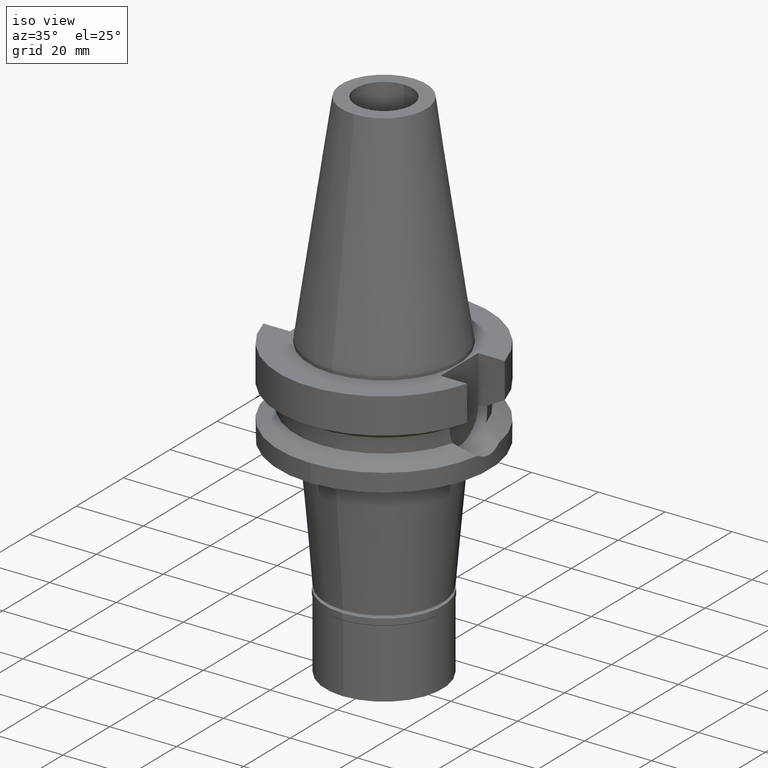
[diagram: clean part render]
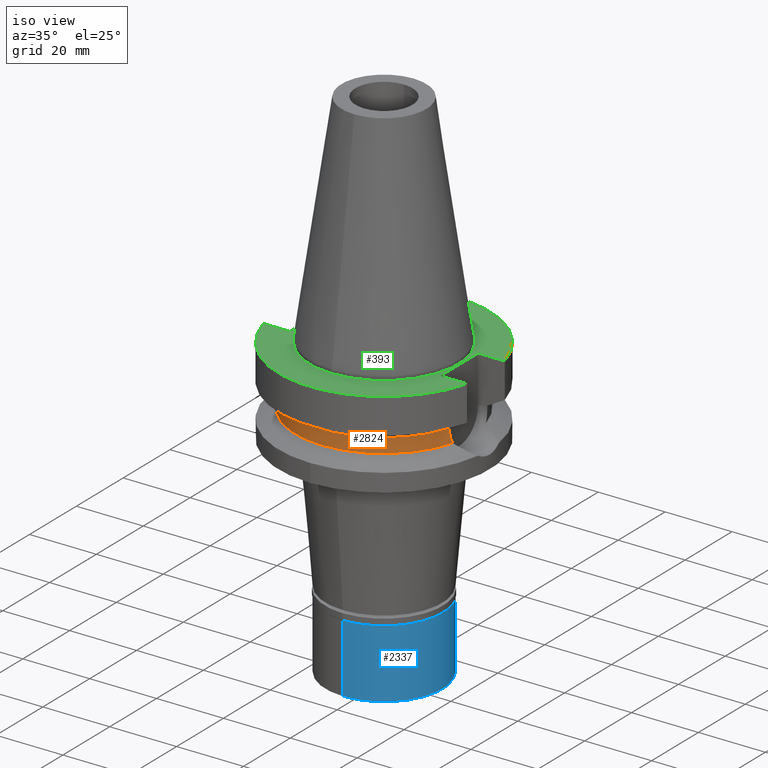
[diagram: same view with three faces highlighted in distinct colors, each labeled with its STEP entity id]
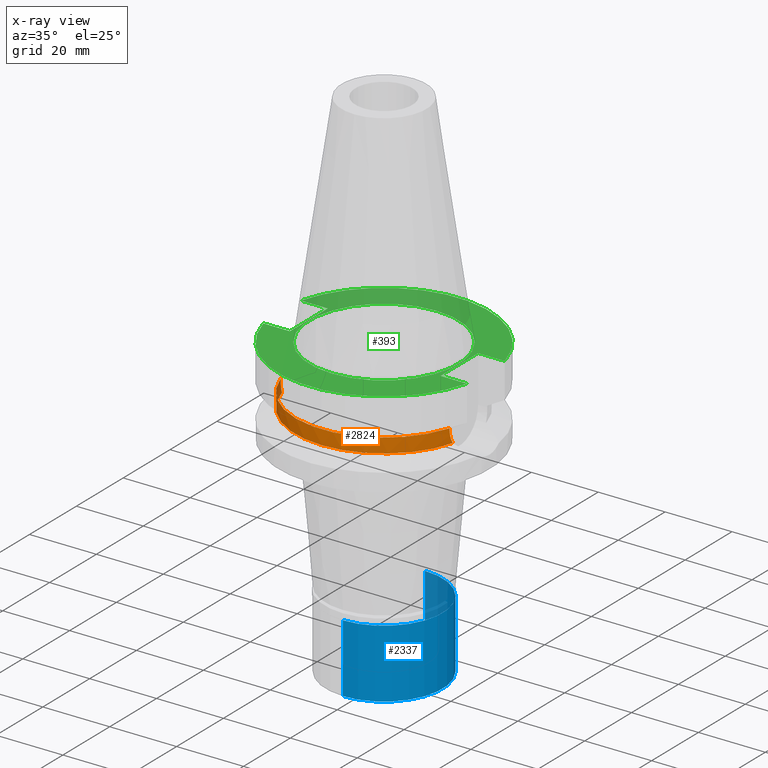
[diagram: x-ray of the same camera — body ghosted, the three highlighted faces saturated]
A machine part, iso view with three faces highlighted in distinct colors.
The next image is the same camera in x-ray (body ghosted, the three faces saturated) — at least one of them is partly hidden behind the body in this view.
Their STEP definitions:

[orange] entity #2824 — the highlighted cylindrical surface (partial cylindrical patch) has radius 26.5 mm, axis along (0, 0, -1).
#82 = VERTEX_POINT ( 'NONE', #1217 ) ;
#85 = EDGE_CURVE ( 'NONE', #82, #1174, #2750, .T. ) ;
#87 = CARTESIAN_POINT ( 'NONE',  ( -25.53175183775000079, -7.097862220092999941, -18.74774300138999905 ) ) ;
#141 = VECTOR ( 'NONE', #1894, 1000.000000000000000 ) ;
#144 = DIRECTION ( 'NONE',  ( 0.0000000000000000000, 0.0000000000000000000, -1.000000000000000000 ) ) ;
#155 = DIRECTION ( 'NONE',  ( 0.0000000000000000000, -1.000000000000000000, 0.0000000000000000000 ) ) ;
#208 = CARTESIAN_POINT ( 'NONE',  ( 25.28048358772242210, -7.947040743794914874, -16.24400980664077920 ) ) ;
#210 = ORIENTED_EDGE ( 'NONE', *, *, #3015, .F. ) ;
#222 = CARTESIAN_POINT ( 'NONE',  ( 25.32118155423751560, -7.816096717212906775, -16.87652453452377443 ) ) ;
#347 = ORIENTED_EDGE ( 'NONE', *, *, #85, .F. ) ;
#418 = CARTESIAN_POINT ( 'NONE',  ( 25.31950905643225269, -7.821515286679913359, -16.85442525727320273 ) ) ;
#474 = CARTESIAN_POINT ( 'NONE',  ( 25.24772216476999986, -8.050001583265000704, -14.45224490106999937 ) ) ;
#481 = CARTESIAN_POINT ( 'NONE',  ( 25.30212919435223995, -7.877667573970332349, -16.61042047323947202 ) ) ;
#600 = ORIENTED_EDGE ( 'NONE', *, *, #1741, .F. ) ;
#604 = CARTESIAN_POINT ( 'NONE',  ( 0.0000000000000000000, 1.065333950388000029E-14, -14.45225699861000024 ) ) ;
#662 = VERTEX_POINT ( 'NONE', #1768 ) ;
#681 = B_SPLINE_CURVE_WITH_KNOTS ( 'NONE', 3,
 ( #87, #1330, #1538, #2321, #2818, #1087, #813, #2560, #2099, #1059, #3063, #3074, #3025, #1315 ),
 .UNSPECIFIED., .F., .F.,
 ( 4, 2, 2, 1, 1, 2, 2, 4 ),
 ( 0.0000000000000000000, 0.2500000000000041078, 0.3750000000000073830, 0.4375000000000078826, 0.4687500000000093259, 0.4843750000000099365, 0.5000000000000105471, 1.000000000000000000 ),
 .UNSPECIFIED. ) ;
#813 = CARTESIAN_POINT ( 'NONE',  ( -25.34388450889784750, -7.742333382928174856, -17.15666984720027344 ) ) ;
#858 = VERTEX_POINT ( 'NONE', #871 ) ;
#863 = EDGE_CURVE ( 'NONE', #1174, #662, #1140, .T. ) ;
#871 = CARTESIAN_POINT ( 'NONE',  ( -25.24772413216999922, -8.049995412768000236, -14.45229205104999970 ) ) ;
#932 = LINE ( 'NONE', #1434, #141 ) ;
#949 = CARTESIAN_POINT ( 'NONE',  ( 25.31648647172267630, -7.831300037042746354, -16.81378020971410336 ) ) ;
#964 = CARTESIAN_POINT ( 'NONE',  ( 25.43786330456363487, -7.435589081430040714, -18.11654211998952135 ) ) ;
#981 = ORIENTED_EDGE ( 'NONE', *, *, #863, .F. ) ;
#1059 = CARTESIAN_POINT ( 'NONE',  ( -25.32550670071061916, -7.802071535306239092, -16.93256103013014169 ) ) ;
#1060 = ORIENTED_EDGE ( 'NONE', *, *, #3092, .T. ) ;
#1087 = CARTESIAN_POINT ( 'NONE',  ( -25.35412323723021544, -7.708830947932238331, -17.27007949472962878 ) ) ;
#1101 = VERTEX_POINT ( 'NONE', #2699 ) ;
#1140 = B_SPLINE_CURVE_WITH_KNOTS ( 'NONE', 3,
 ( #2826, #2884, #2438, #3113, #208, #1655, #481, #1939, #949, #418, #222, #1221, #964, #2869 ),
 .UNSPECIFIED., .F., .F.,
 ( 4, 2, 2, 1, 1, 2, 2, 4 ),
 ( 0.0000000000000000000, 0.2500000000000145439, 0.3750000000000218159, 0.4375000000000255351, 0.4687500000000285882, 0.4843750000000303091, 0.5000000000000319744, 1.000000000000000000 ),
 .UNSPECIFIED. ) ;
#1142 = CARTESIAN_POINT ( 'NONE',  ( 0.0000000000000000000, 2.116618295306000150E-14, 72.83499999999999375 ) ) ;
#1174 = VERTEX_POINT ( 'NONE', #1281 ) ;
#1217 = CARTESIAN_POINT ( 'NONE',  ( 25.24772266958000344, -8.050000000000000711, -14.45225699861000024 ) ) ;
#1221 = CARTESIAN_POINT ( 'NONE',  ( 25.36814761471070767, -7.663830712965410186, -17.48803584493431984 ) ) ;
#1235 = DIRECTION ( 'NONE',  ( 0.0000000000000000000, 0.0000000000000000000, 1.000000000000000000 ) ) ;
#1281 = CARTESIAN_POINT ( 'NONE',  ( 25.24772266958000344, -8.050000000000000711, -14.94999999999999929 ) ) ;
#1315 = CARTESIAN_POINT ( 'NONE',  ( -25.24772266958000344, -8.050000000000000711, -14.94999999999999929 ) ) ;
#1330 = CARTESIAN_POINT ( 'NONE',  ( -25.48482038766596958, -7.266679548433801372, -18.43222872448819771 ) ) ;
#1399 = VECTOR ( 'NONE', #2922, 1000.000000000000000 ) ;
#1434 = CARTESIAN_POINT ( 'NONE',  ( -25.24772266958000344, -8.050000000000000711, -14.94999999999999929 ) ) ;
#1513 = CIRCLE ( 'NONE', #1919, 26.50000000000000711 ) ;
#1538 = CARTESIAN_POINT ( 'NONE',  ( -25.44392837589916567, -7.408239565059886900, -18.11709494172728796 ) ) ;
#1637 = VERTEX_POINT ( 'NONE', #2493 ) ;
#1655 = CARTESIAN_POINT ( 'NONE',  ( 25.29452398121201284, -7.902090651792915033, -16.48828405102948125 ) ) ;
#1741 = EDGE_CURVE ( 'NONE', #1637, #1101, #681, .T. ) ;
#1748 = EDGE_LOOP ( 'NONE', ( #600, #1060, #981, #347, #2772, #210 ) ) ;
#1768 = CARTESIAN_POINT ( 'NONE',  ( 25.53175183775000079, -7.097862220092999941, -18.74774300138999905 ) ) ;
#1894 = DIRECTION ( 'NONE',  ( -2.938661411159025580E-06, 9.216714892034072337E-06, 0.9999999999532082073 ) ) ;
#1919 = AXIS2_PLACEMENT_3D ( 'NONE', #604, #144, #2052 ) ;
#1939 = CARTESIAN_POINT ( 'NONE',  ( 25.31202572170774800, -7.845729406580115750, -16.75279821057748464 ) ) ;
#2052 = DIRECTION ( 'NONE',  ( 0.9527442516822307583, -0.3037735849057093818, 0.0000000000000000000 ) ) ;
#2099 = CARTESIAN_POINT ( 'NONE',  ( -25.32844777903620681, -7.792527725354012169, -16.96974754110893002 ) ) ;
#2321 = CARTESIAN_POINT ( 'NONE',  ( -25.39164951572487183, -7.584807667336966652, -17.65197957159458753 ) ) ;
#2348 = CYLINDRICAL_SURFACE ( 'NONE', #2740, 26.50000000000000000 ) ;
#2438 = CARTESIAN_POINT ( 'NONE',  ( 25.25396284446427231, -8.030907492774099765, -15.59360398733923248 ) ) ;
#2493 = CARTESIAN_POINT ( 'NONE',  ( -25.53175183775000079, -7.097862220092999941, -18.74774300138999905 ) ) ;
#2536 = AXIS2_PLACEMENT_3D ( 'NONE', #2962, #1235, #2760 ) ;
#2560 = CARTESIAN_POINT ( 'NONE',  ( -25.33293017119236268, -7.777974374871634566, -17.02562462713753177 ) ) ;
#2572 = DIRECTION ( 'NONE',  ( 0.0000000000000000000, 0.0000000000000000000, -1.000000000000000000 ) ) ;
#2699 = CARTESIAN_POINT ( 'NONE',  ( -25.24772266958000344, -8.050000000000000711, -14.94999999999999929 ) ) ;
#2740 = AXIS2_PLACEMENT_3D ( 'NONE', #1142, #2572, #155 ) ;
#2750 = LINE ( 'NONE', #474, #1399 ) ;
#2760 = DIRECTION ( 'NONE',  ( -0.9634623335000935818, -0.2678438573619981722, 0.0000000000000000000 ) ) ;
#2772 = ORIENTED_EDGE ( 'NONE', *, *, #2778, .T. ) ;
#2778 = EDGE_CURVE ( 'NONE', #82, #858, #1513, .T. ) ;
#2814 = FACE_OUTER_BOUND ( 'NONE', #1748, .T. ) ;
#2818 = CARTESIAN_POINT ( 'NONE',  ( -25.37573308857942322, -7.637710303739487117, -17.49818662950802306 ) ) ;
#2824 = ADVANCED_FACE ( 'NONE', ( #2814 ), #2348, .T. ) ;
#2826 = CARTESIAN_POINT ( 'NONE',  ( 25.24772266958000344, -8.050000000000000711, -14.94999999999999929 ) ) ;
#2869 = CARTESIAN_POINT ( 'NONE',  ( 25.53175183775000079, -7.097862220092999941, -18.74774300138999905 ) ) ;
#2884 = CARTESIAN_POINT ( 'NONE',  ( 25.24772266958000344, -8.050000000000000711, -15.26991324108737302 ) ) ;
#2922 = DIRECTION ( 'NONE',  ( 1.014171168404026017E-06, 3.180810831124084936E-06, -0.9999999999944269025 ) ) ;
#2962 = CARTESIAN_POINT ( 'NONE',  ( 0.0000000000000000000, 0.0000000000000000000, -18.74774300138999905 ) ) ;
#3015 = EDGE_CURVE ( 'NONE', #1101, #858, #932, .T. ) ;
#3025 = CARTESIAN_POINT ( 'NONE',  ( -25.24772266957999989, -8.049999999999981171, -15.58999736273363546 ) ) ;
#3063 = CARTESIAN_POINT ( 'NONE',  ( -25.32419709970849553, -7.806318959900105270, -16.91578803901766292 ) ) ;
#3074 = CARTESIAN_POINT ( 'NONE',  ( -25.27269391207093463, -7.973288729731969227, -16.24537813257547469 ) ) ;
#3092 = EDGE_CURVE ( 'NONE', #1637, #662, #3147, .T. ) ;
#3113 = CARTESIAN_POINT ( 'NONE',  ( 25.27268336911707891, -7.971811480182248388, -16.08115959834941222 ) ) ;
#3147 = CIRCLE ( 'NONE', #2536, 26.49999999999998224 ) ;

[blue] entity #2337 — the highlighted cylindrical surface (partial cylindrical patch) has radius 17.5 mm, axis along (0, 0, -1).
#148 = FACE_OUTER_BOUND ( 'NONE', #2791, .T. ) ;
#157 = CYLINDRICAL_SURFACE ( 'NONE', #1409, 17.50000000000000000 ) ;
#262 = DIRECTION ( 'NONE',  ( 0.0000000000000000000, 0.0000000000000000000, -1.000000000000000000 ) ) ;
#283 = DIRECTION ( 'NONE',  ( 0.0000000000000000000, 1.000000000000000000, 0.0000000000000000000 ) ) ;
#631 = VERTEX_POINT ( 'NONE', #2455 ) ;
#738 = CARTESIAN_POINT ( 'NONE',  ( 0.0000000000000000000, -17.50000000000000000, -2.000000000000000000 ) ) ;
#770 = DIRECTION ( 'NONE',  ( 0.0000000000000000000, 0.0000000000000000000, -1.000000000000000000 ) ) ;
#848 = CIRCLE ( 'NONE', #954, 17.50000000000000000 ) ;
#861 = DIRECTION ( 'NONE',  ( 0.0000000000000000000, 0.0000000000000000000, -1.000000000000000000 ) ) ;
#882 = ORIENTED_EDGE ( 'NONE', *, *, #1938, .T. ) ;
#950 = AXIS2_PLACEMENT_3D ( 'NONE', #2119, #1797, #2779 ) ;
#954 = AXIS2_PLACEMENT_3D ( 'NONE', #1542, #770, #283 ) ;
#1023 = CARTESIAN_POINT ( 'NONE',  ( 0.0000000000000000000, 17.50000000000000000, -2.000000000000000000 ) ) ;
#1129 = DIRECTION ( 'NONE',  ( 0.0000000000000000000, -1.000000000000000000, 0.0000000000000000000 ) ) ;
#1263 = LINE ( 'NONE', #1023, #1870 ) ;
#1327 = VERTEX_POINT ( 'NONE', #1371 ) ;
#1371 = CARTESIAN_POINT ( 'NONE',  ( 0.0000000000000000000, -17.50000000000000000, -2.000000000000000000 ) ) ;
#1408 = ORIENTED_EDGE ( 'NONE', *, *, #1918, .F. ) ;
#1409 = AXIS2_PLACEMENT_3D ( 'NONE', #2816, #861, #1129 ) ;
#1542 = CARTESIAN_POINT ( 'NONE',  ( 0.0000000000000000000, 0.0000000000000000000, -2.000000000000000000 ) ) ;
#1587 = CARTESIAN_POINT ( 'NONE',  ( 0.0000000000000000000, 17.50000000000000000, -2.000000000000000000 ) ) ;
#1797 = DIRECTION ( 'NONE',  ( 0.0000000000000000000, 0.0000000000000000000, 1.000000000000000000 ) ) ;
#1829 = VERTEX_POINT ( 'NONE', #1587 ) ;
#1870 = VECTOR ( 'NONE', #262, 1000.000000000000000 ) ;
#1918 = EDGE_CURVE ( 'NONE', #1829, #631, #1263, .T. ) ;
#1938 = EDGE_CURVE ( 'NONE', #1327, #2096, #2495, .T. ) ;
#1947 = DIRECTION ( 'NONE',  ( 0.0000000000000000000, 0.0000000000000000000, -1.000000000000000000 ) ) ;
#1958 = VECTOR ( 'NONE', #1947, 1000.000000000000000 ) ;
#1977 = CARTESIAN_POINT ( 'NONE',  ( 0.0000000000000000000, -17.50000000000000000, -22.50000000000000000 ) ) ;
#2096 = VERTEX_POINT ( 'NONE', #1977 ) ;
#2119 = CARTESIAN_POINT ( 'NONE',  ( 0.0000000000000000000, 0.0000000000000000000, -22.50000000000000000 ) ) ;
#2337 = ADVANCED_FACE ( 'NONE', ( #148 ), #157, .T. ) ;
#2455 = CARTESIAN_POINT ( 'NONE',  ( 0.0000000000000000000, 17.50000000000000000, -22.50000000000000000 ) ) ;
#2495 = LINE ( 'NONE', #738, #1958 ) ;
#2533 = CIRCLE ( 'NONE', #950, 17.50000000000000000 ) ;
#2754 = ORIENTED_EDGE ( 'NONE', *, *, #3093, .T. ) ;
#2779 = DIRECTION ( 'NONE',  ( 0.0000000000000000000, -1.000000000000000000, 0.0000000000000000000 ) ) ;
#2791 = EDGE_LOOP ( 'NONE', ( #2754, #882, #2803, #1408 ) ) ;
#2803 = ORIENTED_EDGE ( 'NONE', *, *, #2864, .T. ) ;
#2816 = CARTESIAN_POINT ( 'NONE',  ( 0.0000000000000000000, 0.0000000000000000000, 0.0000000000000000000 ) ) ;
#2864 = EDGE_CURVE ( 'NONE', #2096, #631, #2533, .T. ) ;
#3093 = EDGE_CURVE ( 'NONE', #1829, #1327, #848, .T. ) ;

[green] entity #393 — the highlighted planar face has unit normal (0, 0, -1).
#41 = CARTESIAN_POINT ( 'NONE',  ( 0.0000000000000000000, 22.22500000000000142, -1.000000000000000000 ) ) ;
#127 = DIRECTION ( 'NONE',  ( 0.0000000000000000000, 1.000000000000000000, 0.0000000000000000000 ) ) ;
#142 = CARTESIAN_POINT ( 'NONE',  ( 22.50000000000000000, 8.050000000000000711, -1.000000000000000000 ) ) ;
#341 = ORIENTED_EDGE ( 'NONE', *, *, #1593, .T. ) ;
#393 = ADVANCED_FACE ( 'NONE', ( #1908, #2163 ), #3143, .F. ) ;
#446 = ORIENTED_EDGE ( 'NONE', *, *, #2295, .F. ) ;
#468 = CARTESIAN_POINT ( 'NONE',  ( -30.45402272279000044, -8.050000000000000711, -1.000000000000000000 ) ) ;
#470 = AXIS2_PLACEMENT_3D ( 'NONE', #924, #934, #1688 ) ;
#580 = ORIENTED_EDGE ( 'NONE', *, *, #1685, .F. ) ;
#615 = EDGE_LOOP ( 'NONE', ( #1550, #2522, #2940, #2067, #341, #1333, #1558, #2491 ) ) ;
#621 = LINE ( 'NONE', #1127, #1868 ) ;
#638 = DIRECTION ( 'NONE',  ( -1.000000000000000000, 3.550916904668000126E-14, 0.0000000000000000000 ) ) ;
#821 = EDGE_CURVE ( 'NONE', #1437, #2032, #1081, .T. ) ;
#827 = CARTESIAN_POINT ( 'NONE',  ( 0.0000000000000000000, 2.116618295306000150E-14, -1.000000000000000000 ) ) ;
#845 = VECTOR ( 'NONE', #1980, 1000.000000000000000 ) ;
#886 = DIRECTION ( 'NONE',  ( -1.000000000000000000, -3.550916904668000126E-14, 0.0000000000000000000 ) ) ;
#896 = AXIS2_PLACEMENT_3D ( 'NONE', #827, #1804, #2044 ) ;
#920 = CARTESIAN_POINT ( 'NONE',  ( -30.45402272279000044, 8.050000000000000711, -1.000000000000000000 ) ) ;
#924 = CARTESIAN_POINT ( 'NONE',  ( 0.0000000000000000000, 1.212400331155999925E-14, -1.000000000000000000 ) ) ;
#934 = DIRECTION ( 'NONE',  ( 0.0000000000000000000, 0.0000000000000000000, -1.000000000000000000 ) ) ;
#991 = AXIS2_PLACEMENT_3D ( 'NONE', #2504, #2769, #1018 ) ;
#1002 = CARTESIAN_POINT ( 'NONE',  ( 30.45402272279000044, -8.050000000000000711, -1.000000000000000000 ) ) ;
#1018 = DIRECTION ( 'NONE',  ( 0.0000000000000000000, -1.000000000000000000, 0.0000000000000000000 ) ) ;
#1081 = LINE ( 'NONE', #142, #1910 ) ;
#1104 = VECTOR ( 'NONE', #2910, 1000.000000000000000 ) ;
#1108 = VERTEX_POINT ( 'NONE', #41 ) ;
#1127 = CARTESIAN_POINT ( 'NONE',  ( -22.50000000000000000, 8.050000000000000711, -1.000000000000000000 ) ) ;
#1232 = VERTEX_POINT ( 'NONE', #3066 ) ;
#1326 = DIRECTION ( 'NONE',  ( 0.0000000000000000000, 0.0000000000000000000, -1.000000000000000000 ) ) ;
#1333 = ORIENTED_EDGE ( 'NONE', *, *, #2368, .F. ) ;
#1359 = VECTOR ( 'NONE', #638, 1000.000000000000000 ) ;
#1386 = DIRECTION ( 'NONE',  ( 0.0000000000000000000, -1.000000000000000000, 0.0000000000000000000 ) ) ;
#1431 = EDGE_CURVE ( 'NONE', #1828, #2506, #2113, .T. ) ;
#1437 = VERTEX_POINT ( 'NONE', #2856 ) ;
#1457 = AXIS2_PLACEMENT_3D ( 'NONE', #2627, #1326, #127 ) ;
#1458 = LINE ( 'NONE', #1489, #845 ) ;
#1489 = CARTESIAN_POINT ( 'NONE',  ( 22.50000000000000000, 8.050000000000000711, -1.000000000000000000 ) ) ;
#1550 = ORIENTED_EDGE ( 'NONE', *, *, #2230, .T. ) ;
#1558 = ORIENTED_EDGE ( 'NONE', *, *, #2861, .F. ) ;
#1563 = DIRECTION ( 'NONE',  ( 1.000000000000000000, 3.573249715389999860E-14, 0.0000000000000000000 ) ) ;
#1593 = EDGE_CURVE ( 'NONE', #1437, #2101, #1458, .T. ) ;
#1616 = CARTESIAN_POINT ( 'NONE',  ( 0.0000000000000000000, 2.116618295306000150E-14, -1.000000000000000000 ) ) ;
#1628 = LINE ( 'NONE', #2612, #2688 ) ;
#1685 = EDGE_CURVE ( 'NONE', #1108, #1232, #2278, .T. ) ;
#1688 = DIRECTION ( 'NONE',  ( 0.0000000000000000000, -1.000000000000000000, 0.0000000000000000000 ) ) ;
#1787 = CARTESIAN_POINT ( 'NONE',  ( 30.45402272279000044, 8.050000000000000711, -1.000000000000000000 ) ) ;
#1804 = DIRECTION ( 'NONE',  ( 0.0000000000000000000, 0.0000000000000000000, 1.000000000000000000 ) ) ;
#1828 = VERTEX_POINT ( 'NONE', #2808 ) ;
#1867 = LINE ( 'NONE', #2095, #1359 ) ;
#1868 = VECTOR ( 'NONE', #886, 1000.000000000000000 ) ;
#1908 = FACE_OUTER_BOUND ( 'NONE', #615, .T. ) ;
#1910 = VECTOR ( 'NONE', #1386, 1000.000000000000000 ) ;
#1980 = DIRECTION ( 'NONE',  ( 1.000000000000000000, -3.506251283225999947E-14, 0.0000000000000000000 ) ) ;
#1994 = EDGE_LOOP ( 'NONE', ( #580, #446 ) ) ;
#2032 = VERTEX_POINT ( 'NONE', #2710 ) ;
#2044 = DIRECTION ( 'NONE',  ( 0.0000000000000000000, 1.000000000000000000, 0.0000000000000000000 ) ) ;
#2067 = ORIENTED_EDGE ( 'NONE', *, *, #821, .F. ) ;
#2072 = CIRCLE ( 'NONE', #1457, 31.50000000000000000 ) ;
#2078 = EDGE_CURVE ( 'NONE', #2153, #2505, #2529, .T. ) ;
#2095 = CARTESIAN_POINT ( 'NONE',  ( -22.50000000000000000, -8.050000000000000711, -1.000000000000000000 ) ) ;
#2101 = VERTEX_POINT ( 'NONE', #1787 ) ;
#2113 = LINE ( 'NONE', #2867, #1104 ) ;
#2153 = VERTEX_POINT ( 'NONE', #1002 ) ;
#2163 = FACE_BOUND ( 'NONE', #1994, .T. ) ;
#2230 = EDGE_CURVE ( 'NONE', #1828, #2505, #1867, .T. ) ;
#2278 = CIRCLE ( 'NONE', #896, 22.22500000000000142 ) ;
#2295 = EDGE_CURVE ( 'NONE', #1232, #1108, #2377, .T. ) ;
#2368 = EDGE_CURVE ( 'NONE', #3014, #2101, #2072, .T. ) ;
#2377 = CIRCLE ( 'NONE', #2589, 22.22500000000000142 ) ;
#2380 = CARTESIAN_POINT ( 'NONE',  ( -22.50000000000000000, 8.050000000000000711, -1.000000000000000000 ) ) ;
#2491 = ORIENTED_EDGE ( 'NONE', *, *, #1431, .F. ) ;
#2504 = CARTESIAN_POINT ( 'NONE',  ( 0.0000000000000000000, 2.116618295306000150E-14, -1.000000000000000000 ) ) ;
#2505 = VERTEX_POINT ( 'NONE', #468 ) ;
#2506 = VERTEX_POINT ( 'NONE', #2380 ) ;
#2522 = ORIENTED_EDGE ( 'NONE', *, *, #2078, .F. ) ;
#2529 = CIRCLE ( 'NONE', #991, 31.50000000000000000 ) ;
#2577 = DIRECTION ( 'NONE',  ( 0.0000000000000000000, -1.000000000000000000, 0.0000000000000000000 ) ) ;
#2589 = AXIS2_PLACEMENT_3D ( 'NONE', #1616, #2863, #2577 ) ;
#2612 = CARTESIAN_POINT ( 'NONE',  ( 22.50000000000000000, -8.050000000000000711, -1.000000000000000000 ) ) ;
#2627 = CARTESIAN_POINT ( 'NONE',  ( 0.0000000000000000000, 2.116618295306000150E-14, -1.000000000000000000 ) ) ;
#2687 = EDGE_CURVE ( 'NONE', #2032, #2153, #1628, .T. ) ;
#2688 = VECTOR ( 'NONE', #1563, 1000.000000000000000 ) ;
#2710 = CARTESIAN_POINT ( 'NONE',  ( 22.50000000000000000, -8.050000000000000711, -1.000000000000000000 ) ) ;
#2769 = DIRECTION ( 'NONE',  ( 0.0000000000000000000, 0.0000000000000000000, -1.000000000000000000 ) ) ;
#2808 = CARTESIAN_POINT ( 'NONE',  ( -22.50000000000000000, -8.050000000000000711, -1.000000000000000000 ) ) ;
#2856 = CARTESIAN_POINT ( 'NONE',  ( 22.50000000000000000, 8.050000000000000711, -1.000000000000000000 ) ) ;
#2861 = EDGE_CURVE ( 'NONE', #2506, #3014, #621, .T. ) ;
#2863 = DIRECTION ( 'NONE',  ( 0.0000000000000000000, 0.0000000000000000000, 1.000000000000000000 ) ) ;
#2867 = CARTESIAN_POINT ( 'NONE',  ( -22.50000000000000000, -8.050000000000000711, -1.000000000000000000 ) ) ;
#2910 = DIRECTION ( 'NONE',  ( 0.0000000000000000000, 1.000000000000000000, 0.0000000000000000000 ) ) ;
#2940 = ORIENTED_EDGE ( 'NONE', *, *, #2687, .F. ) ;
#3014 = VERTEX_POINT ( 'NONE', #920 ) ;
#3066 = CARTESIAN_POINT ( 'NONE',  ( 0.0000000000000000000, -22.22500000000000142, -1.000000000000000000 ) ) ;
#3143 = PLANE ( 'NONE',  #470 ) ;